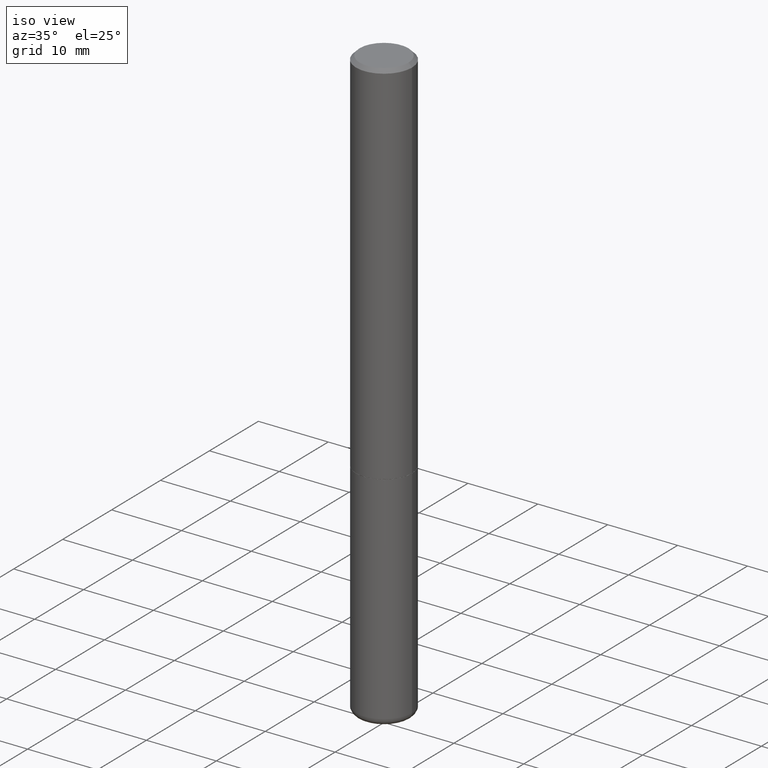
[diagram: clean part render]
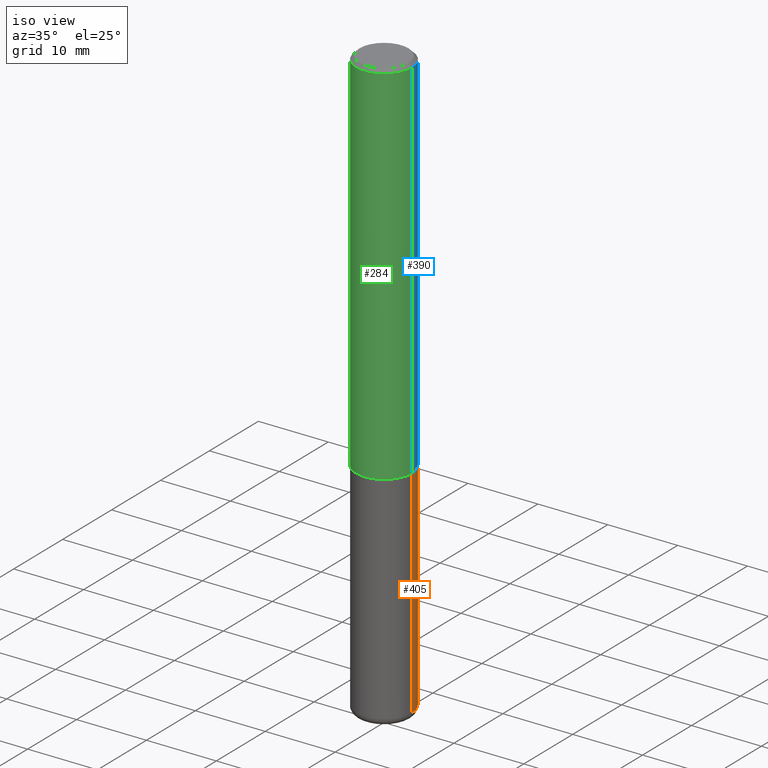
[diagram: same view with three faces highlighted in distinct colors, each labeled with its STEP entity id]
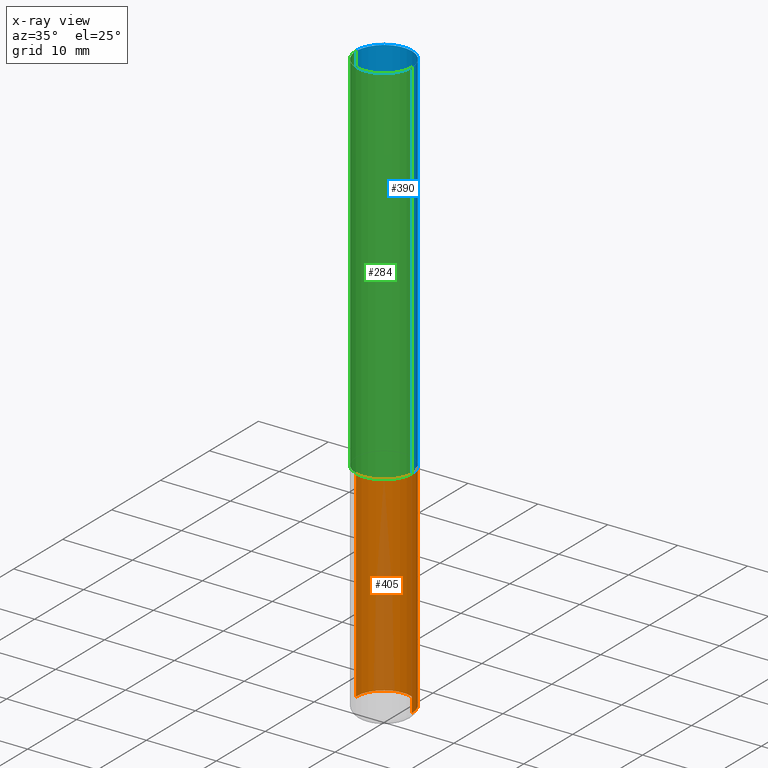
[diagram: x-ray of the same camera — body ghosted, the three highlighted faces saturated]
A machine part, iso view with three faces highlighted in distinct colors.
The next image is the same camera in x-ray (body ghosted, the three faces saturated) — at least one of them is partly hidden behind the body in this view.
Their STEP definitions:

[orange] entity #405 — the highlighted cylindrical surface (edge-blend (fillet) strip) has radius 4.0005 mm, axis along (-0, 0, 1).
#35 = CARTESIAN_POINT ( 'NONE',  ( 0.000000000000000000, 0.000000000000000000, 0.000000000000000000 ) ) ;
#45 = LINE ( 'NONE', #270, #63 ) ;
#53 = VERTEX_POINT ( 'NONE', #337 ) ;
#63 = VECTOR ( 'NONE', #329, 39.37007874015748143 ) ;
#69 = DIRECTION ( 'NONE',  ( -2.445468806185136597E-29, 3.491481338843145583E-15, 1.000000000000000000 ) ) ;
#75 = DIRECTION ( 'NONE',  ( 1.000000000000000000, -6.982962677686268288E-15, 0.000000000000000000 ) ) ;
#78 = CARTESIAN_POINT ( 'NONE',  ( 5.102959757866523939E-29, -7.285674109763990928E-15, -2.086699999999999999 ) ) ;
#112 = CARTESIAN_POINT ( 'NONE',  ( -0.1574999999999998901, -1.042757312686600805E-14, -3.307099999999999707 ) ) ;
#170 = AXIS2_PLACEMENT_3D ( 'NONE', #35, #276, #242 ) ;
#175 = ORIENTED_EDGE ( 'NONE', *, *, #202, .T. ) ;
#180 = CIRCLE ( 'NONE', #279, 0.1575000000000000011 ) ;
#182 = VERTEX_POINT ( 'NONE', #215 ) ;
#202 = EDGE_CURVE ( 'NONE', #366, #301, #408, .T. ) ;
#215 = CARTESIAN_POINT ( 'NONE',  ( -0.1575000000000000011, -8.297071213903919899E-15, -2.086699999999999999 ) ) ;
#216 = CARTESIAN_POINT ( 'NONE',  ( -0.1575000000000000011, 1.119104808822157801E-15, -7.747322767151475583E-30 ) ) ;
#219 = DIRECTION ( 'NONE',  ( -2.445468806185136597E-29, 3.491481338843145583E-15, 1.000000000000000000 ) ) ;
#221 = AXIS2_PLACEMENT_3D ( 'NONE', #315, #219, #281 ) ;
#236 = EDGE_CURVE ( 'NONE', #301, #182, #382, .T. ) ;
#242 = DIRECTION ( 'NONE',  ( 1.000000000000000000, -6.982962677686265922E-15, 4.876176775795935232E-29 ) ) ;
#251 = CYLINDRICAL_SURFACE ( 'NONE', #170, 0.1575000000000000011 ) ;
#264 = VECTOR ( 'NONE', #346, 39.37007874015748143 ) ;
#270 = CARTESIAN_POINT ( 'NONE',  ( 0.1575000000000000011, -1.099816621735586889E-15, 7.679978421878598033E-30 ) ) ;
#276 = DIRECTION ( 'NONE',  ( -2.445468806185136597E-29, 3.491481338843145583E-15, 1.000000000000000000 ) ) ;
#279 = AXIS2_PLACEMENT_3D ( 'NONE', #78, #69, #75 ) ;
#281 = DIRECTION ( 'NONE',  ( 1.000000000000000000, -6.982962677686261977E-15, 0.000000000000000000 ) ) ;
#301 = VERTEX_POINT ( 'NONE', #112 ) ;
#308 = EDGE_LOOP ( 'NONE', ( #175, #374, #353, #327 ) ) ;
#312 = EDGE_CURVE ( 'NONE', #53, #182, #180, .T. ) ;
#315 = CARTESIAN_POINT ( 'NONE',  ( 8.087409888934865187E-29, -1.154667793568816566E-14, -3.307099999999999707 ) ) ;
#327 = ORIENTED_EDGE ( 'NONE', *, *, #367, .F. ) ;
#329 = DIRECTION ( 'NONE',  ( -2.445468806185136877E-29, 3.491481338843145188E-15, 1.000000000000000000 ) ) ;
#337 = CARTESIAN_POINT ( 'NONE',  ( 0.1575000000000000011, -8.385490731499577619E-15, -2.086699999999999999 ) ) ;
#345 = FACE_OUTER_BOUND ( 'NONE', #308, .T. ) ;
#346 = DIRECTION ( 'NONE',  ( -2.445468806185136877E-29, 3.491481338843145188E-15, 1.000000000000000000 ) ) ;
#353 = ORIENTED_EDGE ( 'NONE', *, *, #312, .F. ) ;
#366 = VERTEX_POINT ( 'NONE', #368 ) ;
#367 = EDGE_CURVE ( 'NONE', #366, #53, #45, .T. ) ;
#368 = CARTESIAN_POINT ( 'NONE',  ( 0.1574999999999998901, -1.264649455742375235E-14, -3.307099999999999707 ) ) ;
#374 = ORIENTED_EDGE ( 'NONE', *, *, #236, .T. ) ;
#382 = LINE ( 'NONE', #216, #264 ) ;
#405 = ADVANCED_FACE ( 'NONE', ( #345 ), #251, .T. ) ;
#408 = CIRCLE ( 'NONE', #221, 0.1575000000000000011 ) ;

[blue] entity #390 — the highlighted cylindrical surface (edge-blend (fillet) strip) has radius 4.0005 mm, axis along (-0, 0, 1).
#26 = LINE ( 'NONE', #156, #56 ) ;
#54 = VERTEX_POINT ( 'NONE', #113 ) ;
#56 = VECTOR ( 'NONE', #121, 39.37007874015748143 ) ;
#61 = CARTESIAN_POINT ( 'NONE',  ( 4.890937612370281041E-31, -6.982962677686302702E-17, -0.02000000000000003511 ) ) ;
#92 = CARTESIAN_POINT ( 'NONE',  ( 0.1575000000000001954, -8.381999250160736190E-15, -2.085699999999999665 ) ) ;
#93 = CIRCLE ( 'NONE', #235, 0.1575000000000001954 ) ;
#103 = VERTEX_POINT ( 'NONE', #184 ) ;
#105 = CYLINDRICAL_SURFACE ( 'NONE', #153, 0.1575000000000000844 ) ;
#113 = CARTESIAN_POINT ( 'NONE',  ( 0.1575000000000000289, -1.150358061425879472E-15, -0.02000000000000003511 ) ) ;
#121 = DIRECTION ( 'NONE',  ( -2.445468806185136877E-29, 3.491481338843145188E-15, 1.000000000000000000 ) ) ;
#126 = AXIS2_PLACEMENT_3D ( 'NONE', #61, #350, #411 ) ;
#135 = EDGE_LOOP ( 'NONE', ( #303, #224, #391, #204 ) ) ;
#140 = DIRECTION ( 'NONE',  ( -2.445468806185136877E-29, 3.491481338843145188E-15, 1.000000000000000000 ) ) ;
#153 = AXIS2_PLACEMENT_3D ( 'NONE', #203, #273, #282 ) ;
#156 = CARTESIAN_POINT ( 'NONE',  ( 0.1575000000000000844, -1.099816621735587677E-15, 7.679978421878603638E-30 ) ) ;
#178 = DIRECTION ( 'NONE',  ( -2.445468806185136597E-29, 3.491481338843145583E-15, 1.000000000000000000 ) ) ;
#184 = CARTESIAN_POINT ( 'NONE',  ( -0.1575000000000000289, 1.029986994958724182E-15, -0.02000000000000003511 ) ) ;
#203 = CARTESIAN_POINT ( 'NONE',  ( 0.000000000000000000, 0.000000000000000000, 0.000000000000000000 ) ) ;
#204 = ORIENTED_EDGE ( 'NONE', *, *, #220, .F. ) ;
#206 = CARTESIAN_POINT ( 'NONE',  ( 5.100514289060338336E-29, -7.282182628425147921E-15, -2.085699999999999665 ) ) ;
#209 = VERTEX_POINT ( 'NONE', #92 ) ;
#210 = EDGE_CURVE ( 'NONE', #54, #103, #272, .T. ) ;
#220 = EDGE_CURVE ( 'NONE', #209, #54, #26, .T. ) ;
#224 = ORIENTED_EDGE ( 'NONE', *, *, #322, .T. ) ;
#235 = AXIS2_PLACEMENT_3D ( 'NONE', #206, #178, #305 ) ;
#247 = CARTESIAN_POINT ( 'NONE',  ( -0.1575000000000001954, -2.556901318778844062E-15, -2.085699999999999665 ) ) ;
#257 = VECTOR ( 'NONE', #140, 39.37007874015748143 ) ;
#272 = CIRCLE ( 'NONE', #126, 0.1575000000000000289 ) ;
#273 = DIRECTION ( 'NONE',  ( -2.445468806185136597E-29, 3.491481338843145583E-15, 1.000000000000000000 ) ) ;
#282 = DIRECTION ( 'NONE',  ( 1.000000000000000000, -6.982962677686267499E-15, 4.876176775795936353E-29 ) ) ;
#297 = LINE ( 'NONE', #335, #257 ) ;
#303 = ORIENTED_EDGE ( 'NONE', *, *, #372, .T. ) ;
#305 = DIRECTION ( 'NONE',  ( 1.000000000000000000, -6.982962677686265922E-15, 0.000000000000000000 ) ) ;
#322 = EDGE_CURVE ( 'NONE', #402, #103, #297, .T. ) ;
#335 = CARTESIAN_POINT ( 'NONE',  ( -0.1575000000000000844, 1.119104808822158392E-15, -7.747322767151481189E-30 ) ) ;
#350 = DIRECTION ( 'NONE',  ( -2.445468806185136597E-29, 3.491481338843145583E-15, 1.000000000000000000 ) ) ;
#372 = EDGE_CURVE ( 'NONE', #209, #402, #93, .T. ) ;
#390 = ADVANCED_FACE ( 'NONE', ( #401 ), #105, .T. ) ;
#391 = ORIENTED_EDGE ( 'NONE', *, *, #210, .F. ) ;
#401 = FACE_OUTER_BOUND ( 'NONE', #135, .T. ) ;
#402 = VERTEX_POINT ( 'NONE', #247 ) ;
#411 = DIRECTION ( 'NONE',  ( 1.000000000000000000, -6.982962677686267499E-15, 0.000000000000000000 ) ) ;

[green] entity #284 — the highlighted cylindrical surface (edge-blend (fillet) strip) has radius 4.0005 mm, axis along (-0, 0, 1).
#9 = CIRCLE ( 'NONE', #244, 0.1575000000000001954 ) ;
#13 = ORIENTED_EDGE ( 'NONE', *, *, #220, .T. ) ;
#20 = FACE_OUTER_BOUND ( 'NONE', #294, .T. ) ;
#21 = ORIENTED_EDGE ( 'NONE', *, *, #149, .T. ) ;
#26 = LINE ( 'NONE', #156, #56 ) ;
#29 = DIRECTION ( 'NONE',  ( -2.445468806185136597E-29, 3.491481338843145583E-15, 1.000000000000000000 ) ) ;
#39 = DIRECTION ( 'NONE',  ( -2.445468806185136597E-29, 3.491481338843145583E-15, 1.000000000000000000 ) ) ;
#50 = CYLINDRICAL_SURFACE ( 'NONE', #98, 0.1575000000000000844 ) ;
#54 = VERTEX_POINT ( 'NONE', #113 ) ;
#56 = VECTOR ( 'NONE', #121, 39.37007874015748143 ) ;
#60 = DIRECTION ( 'NONE',  ( -2.445468806185136597E-29, 3.491481338843145583E-15, 1.000000000000000000 ) ) ;
#76 = ORIENTED_EDGE ( 'NONE', *, *, #205, .F. ) ;
#92 = CARTESIAN_POINT ( 'NONE',  ( 0.1575000000000001954, -8.381999250160736190E-15, -2.085699999999999665 ) ) ;
#98 = AXIS2_PLACEMENT_3D ( 'NONE', #237, #39, #266 ) ;
#103 = VERTEX_POINT ( 'NONE', #184 ) ;
#113 = CARTESIAN_POINT ( 'NONE',  ( 0.1575000000000000289, -1.150358061425879472E-15, -0.02000000000000003511 ) ) ;
#121 = DIRECTION ( 'NONE',  ( -2.445468806185136877E-29, 3.491481338843145188E-15, 1.000000000000000000 ) ) ;
#131 = ORIENTED_EDGE ( 'NONE', *, *, #322, .F. ) ;
#140 = DIRECTION ( 'NONE',  ( -2.445468806185136877E-29, 3.491481338843145188E-15, 1.000000000000000000 ) ) ;
#149 = EDGE_CURVE ( 'NONE', #402, #209, #9, .T. ) ;
#156 = CARTESIAN_POINT ( 'NONE',  ( 0.1575000000000000844, -1.099816621735587677E-15, 7.679978421878603638E-30 ) ) ;
#161 = DIRECTION ( 'NONE',  ( 1.000000000000000000, -6.982962677686267499E-15, 0.000000000000000000 ) ) ;
#184 = CARTESIAN_POINT ( 'NONE',  ( -0.1575000000000000289, 1.029986994958724182E-15, -0.02000000000000003511 ) ) ;
#189 = CARTESIAN_POINT ( 'NONE',  ( 5.100514289060338336E-29, -7.282182628425147921E-15, -2.085699999999999665 ) ) ;
#199 = CIRCLE ( 'NONE', #211, 0.1575000000000000289 ) ;
#205 = EDGE_CURVE ( 'NONE', #103, #54, #199, .T. ) ;
#209 = VERTEX_POINT ( 'NONE', #92 ) ;
#211 = AXIS2_PLACEMENT_3D ( 'NONE', #288, #29, #161 ) ;
#220 = EDGE_CURVE ( 'NONE', #209, #54, #26, .T. ) ;
#237 = CARTESIAN_POINT ( 'NONE',  ( 0.000000000000000000, 0.000000000000000000, 0.000000000000000000 ) ) ;
#244 = AXIS2_PLACEMENT_3D ( 'NONE', #189, #60, #413 ) ;
#247 = CARTESIAN_POINT ( 'NONE',  ( -0.1575000000000001954, -2.556901318778844062E-15, -2.085699999999999665 ) ) ;
#257 = VECTOR ( 'NONE', #140, 39.37007874015748143 ) ;
#266 = DIRECTION ( 'NONE',  ( 1.000000000000000000, -6.982962677686267499E-15, 4.876176775795936353E-29 ) ) ;
#284 = ADVANCED_FACE ( 'NONE', ( #20 ), #50, .T. ) ;
#288 = CARTESIAN_POINT ( 'NONE',  ( 4.890937612370281041E-31, -6.982962677686302702E-17, -0.02000000000000003511 ) ) ;
#294 = EDGE_LOOP ( 'NONE', ( #131, #21, #13, #76 ) ) ;
#297 = LINE ( 'NONE', #335, #257 ) ;
#322 = EDGE_CURVE ( 'NONE', #402, #103, #297, .T. ) ;
#335 = CARTESIAN_POINT ( 'NONE',  ( -0.1575000000000000844, 1.119104808822158392E-15, -7.747322767151481189E-30 ) ) ;
#402 = VERTEX_POINT ( 'NONE', #247 ) ;
#413 = DIRECTION ( 'NONE',  ( 1.000000000000000000, -6.982962677686265922E-15, 0.000000000000000000 ) ) ;